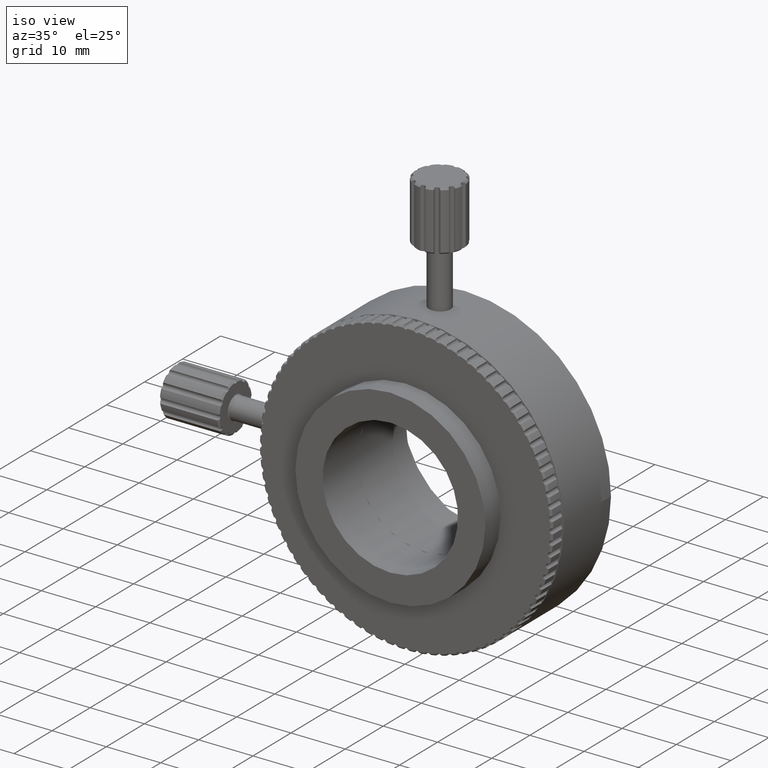
[diagram: clean part render]
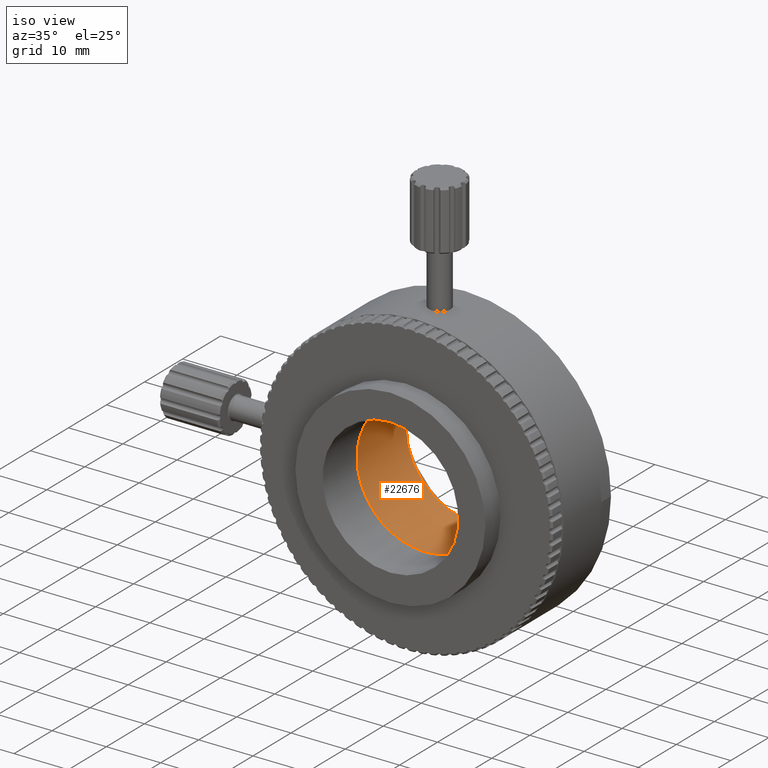
[diagram: same view with one face highlighted and labeled with its STEP entity id]
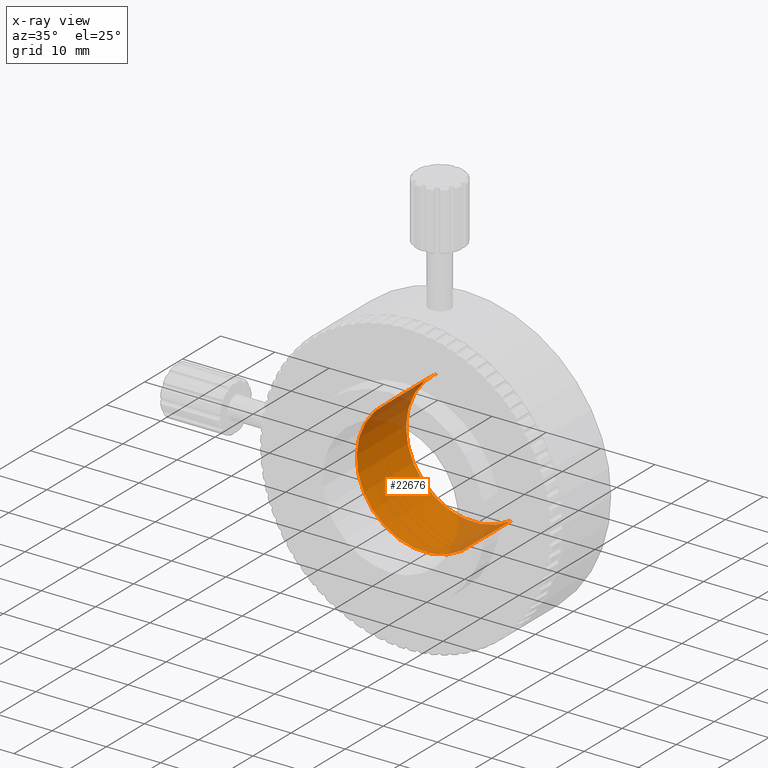
[diagram: x-ray of the same camera — body ghosted, the highlighted face saturated]
A machine part, iso view. The second image highlights one B-rep face of the part: STEP entity #22676.
The next image is the same camera in x-ray: the body ghosted, the highlighted face saturated — about 19% of this face is hidden behind the body in this view.
In plain terms, the highlighted cylindrical surface (partial cylindrical patch) has radius 12.5 mm, axis along (0, 1, 0).
Its self-contained STEP definition (entity closure, byte-faithful):
#28 = CYLINDRICAL_SURFACE ( 'NONE', #7155, 12.50000000000000178 ) ;
#1029 = AXIS2_PLACEMENT_3D ( 'NONE', #17787, #16048, #9386 ) ;
#1228 = ORIENTED_EDGE ( 'NONE', *, *, #19824, .F. ) ;
#1312 = CARTESIAN_POINT ( 'NONE',  ( 2.406916145511377447, 9.570142668076845993, 86.84697675033942232 ) ) ;
#1421 = EDGE_CURVE ( 'NONE', #2615, #3334, #2215, .T. ) ;
#1857 = VERTEX_POINT ( 'NONE', #16973 ) ;
#2215 = LINE ( 'NONE', #14793, #18396 ) ;
#2615 = VERTEX_POINT ( 'NONE', #7246 ) ;
#2894 = VERTEX_POINT ( 'NONE', #18613 ) ;
#3187 = CARTESIAN_POINT ( 'NONE',  ( 2.103048595303888213, 10.07014266807713554, 86.63650245334309830 ) ) ;
#3334 = VERTEX_POINT ( 'NONE', #10879 ) ;
#3866 = ORIENTED_EDGE ( 'NONE', *, *, #19321, .F. ) ;
#4103 = CARTESIAN_POINT ( 'NONE',  ( 2.516161516554931143, 10.57014266807713554, 86.91834956504644083 ) ) ;
#4903 = DIRECTION ( 'NONE',  ( 0.5469441386039884945, 0.000000000000000000, -0.8371691043312222691 ) ) ;
#5186 = EDGE_CURVE ( 'NONE', #1857, #3334, #20628, .T. ) ;
#5405 = FACE_OUTER_BOUND ( 'NONE', #21166, .T. ) ;
#5540 = CARTESIAN_POINT ( 'NONE',  ( 16.18976498165464761, 24.57014266807713909, 65.98912195676588510 ) ) ;
#5971 = CARTESIAN_POINT ( 'NONE',  ( 2.103048595303887769, 10.20220211716518399, 86.63650245334308408 ) ) ;
#5999 = VECTOR ( 'NONE', #7524, 1000.000000000000000 ) ;
#6364 = CARTESIAN_POINT ( 'NONE',  ( 16.18976498165464761, 6.070142668077142645, 65.98912195676588510 ) ) ;
#7155 = AXIS2_PLACEMENT_3D ( 'NONE', #8665, #12381, #22911 ) ;
#7246 = CARTESIAN_POINT ( 'NONE',  ( 2.516161516554932032, 6.070142668077142645, 86.91834956504644083 ) ) ;
#7524 = DIRECTION ( 'NONE',  ( 0.000000000000000000, 1.000000000000000000, 0.000000000000000000 ) ) ;
#7555 = VERTEX_POINT ( 'NONE', #8232 ) ;
#7708 = CARTESIAN_POINT ( 'NONE',  ( 2.298819069977382501, 10.51601862383529884, 86.77350179055058277 ) ) ;
#8232 = CARTESIAN_POINT ( 'NONE',  ( 16.18976498165464761, 19.07014266807713909, 65.98912195676588510 ) ) ;
#8665 = CARTESIAN_POINT ( 'NONE',  ( 9.352963249104790933, 24.57014266807713909, 76.45373576090617007 ) ) ;
#9386 = DIRECTION ( 'NONE',  ( 0.5469441386039884945, 0.000000000000000000, -0.8371691043312222691 ) ) ;
#10708 = ORIENTED_EDGE ( 'NONE', *, *, #1421, .F. ) ;
#10869 = B_SPLINE_CURVE_WITH_KNOTS ( 'NONE', 3,
 ( #4103, #20314, #7708, #12940, #5971, #14807 ),
 .UNSPECIFIED., .F., .F.,
 ( 4, 2, 4 ),
 ( 0.002345309215349964706, 0.002735861356917054094, 0.003126413498484143915 ),
 .UNSPECIFIED. ) ;
#10879 = CARTESIAN_POINT ( 'NONE',  ( 2.516161516555426747, 9.570142668070634073, 86.91834956504708032 ) ) ;
#11148 = ORIENTED_EDGE ( 'NONE', *, *, #5186, .T. ) ;
#11561 = LINE ( 'NONE', #20328, #15323 ) ;
#11671 = CARTESIAN_POINT ( 'NONE',  ( 2.516161516555426747, 9.570142668070634073, 86.91834956504708032 ) ) ;
#12381 = DIRECTION ( 'NONE',  ( 0.000000000000000000, 1.000000000000000000, 0.000000000000000000 ) ) ;
#12466 = EDGE_CURVE ( 'NONE', #7555, #20474, #22261, .T. ) ;
#12940 = CARTESIAN_POINT ( 'NONE',  ( 2.147179069772037874, 10.33158338930260811, 86.66819587230693855 ) ) ;
#13536 = CARTESIAN_POINT ( 'NONE',  ( 2.147165368376536154, 9.808707159162295852, 86.66818655310576958 ) ) ;
#14456 = EDGE_CURVE ( 'NONE', #2894, #1857, #10869, .T. ) ;
#14506 = LINE ( 'NONE', #5540, #5999 ) ;
#14793 = CARTESIAN_POINT ( 'NONE',  ( 2.516161516554930255, 24.57014266807713909, 86.91834956504644083 ) ) ;
#14807 = CARTESIAN_POINT ( 'NONE',  ( 2.103048595303888213, 10.07014266807713554, 86.63650245334309830 ) ) ;
#15323 = VECTOR ( 'NONE', #18445, 1000.000000000000000 ) ;
#15499 = DIRECTION ( 'NONE',  ( 0.000000000000000000, 1.000000000000000000, 0.000000000000000000 ) ) ;
#15938 = VERTEX_POINT ( 'NONE', #6364 ) ;
#16048 = DIRECTION ( 'NONE',  ( 0.000000000000000000, 1.000000000000000000, 0.000000000000000000 ) ) ;
#16657 = DIRECTION ( 'NONE',  ( 0.000000000000000000, 1.000000000000000000, 0.000000000000000000 ) ) ;
#16973 = CARTESIAN_POINT ( 'NONE',  ( 2.103048595303888213, 10.07014266807713554, 86.63650245334309830 ) ) ;
#17473 = CARTESIAN_POINT ( 'NONE',  ( 9.352963249104790933, 6.070142668077142645, 76.45373576090617007 ) ) ;
#17787 = CARTESIAN_POINT ( 'NONE',  ( 9.352963249104790933, 19.07014266807713909, 76.45373576090617007 ) ) ;
#18396 = VECTOR ( 'NONE', #16657, 1000.000000000000000 ) ;
#18445 = DIRECTION ( 'NONE',  ( 0.000000000000000000, 1.000000000000000000, 0.000000000000000000 ) ) ;
#18475 = ORIENTED_EDGE ( 'NONE', *, *, #14456, .T. ) ;
#18613 = CARTESIAN_POINT ( 'NONE',  ( 2.516161516554931143, 10.57014266807713554, 86.91834956504644083 ) ) ;
#18816 = EDGE_CURVE ( 'NONE', #15938, #7555, #14506, .T. ) ;
#18904 = CARTESIAN_POINT ( 'NONE',  ( 2.516161516554932032, 19.07014266807713909, 86.91834956504644083 ) ) ;
#19090 = ORIENTED_EDGE ( 'NONE', *, *, #18816, .T. ) ;
#19321 = EDGE_CURVE ( 'NONE', #2894, #20474, #11561, .T. ) ;
#19824 = EDGE_CURVE ( 'NONE', #15938, #2615, #20585, .T. ) ;
#19998 = ORIENTED_EDGE ( 'NONE', *, *, #12466, .T. ) ;
#20314 = CARTESIAN_POINT ( 'NONE',  ( 2.405779540565874175, 10.57014266807713554, 86.84623417705327597 ) ) ;
#20328 = CARTESIAN_POINT ( 'NONE',  ( 2.516161516554930255, 24.57014266807713909, 86.91834956504644083 ) ) ;
#20474 = VERTEX_POINT ( 'NONE', #18904 ) ;
#20585 = CIRCLE ( 'NONE', #22072, 12.50000000000000178 ) ;
#20628 = B_SPLINE_CURVE_WITH_KNOTS ( 'NONE', 3,
 ( #3187, #22643, #13536, #21015, #1312, #11671 ),
 .UNSPECIFIED., .F., .F.,
 ( 4, 2, 4 ),
 ( 0.000000000000000000, 0.0003909348672555142102, 0.0007818697345110284204 ),
 .UNSPECIFIED. ) ;
#21015 = CARTESIAN_POINT ( 'NONE',  ( 2.298868515931785872, 9.624218027660358388, 86.77353593240148655 ) ) ;
#21166 = EDGE_LOOP ( 'NONE', ( #10708, #1228, #19090, #19998, #3866, #18475, #11148 ) ) ;
#22072 = AXIS2_PLACEMENT_3D ( 'NONE', #17473, #15499, #4903 ) ;
#22261 = CIRCLE ( 'NONE', #1029, 12.50000000000000178 ) ;
#22643 = CARTESIAN_POINT ( 'NONE',  ( 2.103048595303886881, 9.937953805939752527, 86.63650245334309830 ) ) ;
#22676 = ADVANCED_FACE ( 'NONE', ( #5405 ), #28, .F. ) ;
#22911 = DIRECTION ( 'NONE',  ( 0.5469441386039884945, 0.000000000000000000, -0.8371691043312222691 ) ) ;